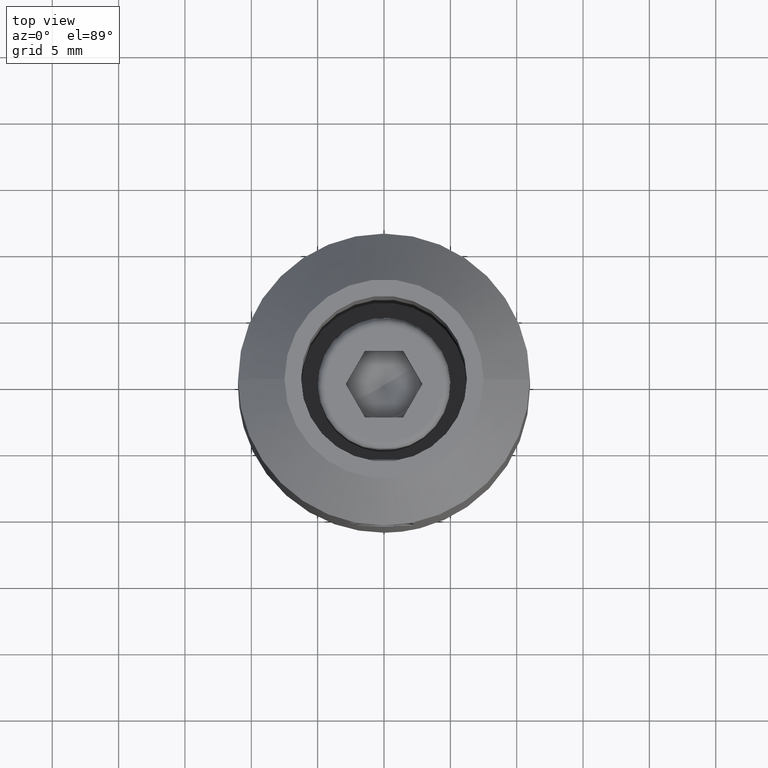
[diagram: clean part render]
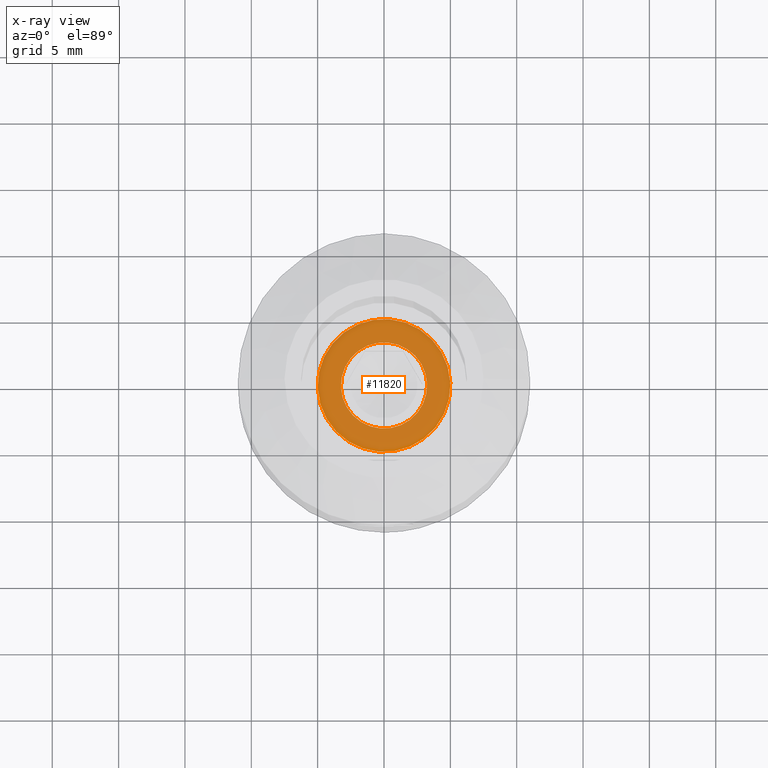
[diagram: x-ray — body ghosted, one internal face saturated and labeled with its STEP entity id]
A machine part, top view, then the same camera in x-ray: the body is ghosted and one INTERNAL B-rep face — a face not visible from any outside direction — is saturated and labeled: STEP entity #11820.
In plain terms, the highlighted planar face has unit normal (0, 0, -1).
Its self-contained STEP definition (entity closure, byte-faithful):
#46 = DIRECTION ( 'NONE',  ( -0.000000000000000000, 2.109423746787771394E-15, -1.000000000000000000 ) ) ;
#182 = CARTESIAN_POINT ( 'NONE',  ( 5.999999999999998224, 0.000000000000000000, 0.000000000000000000 ) ) ;
#391 = ORIENTED_EDGE ( 'NONE', *, *, #2069, .T. ) ;
#999 = EDGE_LOOP ( 'NONE', ( #15468, #7928 ) ) ;
#2069 = EDGE_CURVE ( 'NONE', #15033, #12551, #10510, .T. ) ;
#2611 = CARTESIAN_POINT ( 'NONE',  ( 5.999999999999998224, 1.115944213351253350E-14, -5.000000000000000000 ) ) ;
#4245 = CARTESIAN_POINT ( 'NONE',  ( 6.000000000000001776, 6.855627177060340059E-15, -3.250000000000039968 ) ) ;
#4606 = EDGE_CURVE ( 'NONE', #18662, #7237, #17192, .T. ) ;
#5310 = DIRECTION ( 'NONE',  ( 0.000000000000000000, -2.109423746787771394E-15, 1.000000000000000000 ) ) ;
#5490 = CARTESIAN_POINT ( 'NONE',  ( 5.999999999999998224, -1.054711873393898713E-14, 5.000000000000062172 ) ) ;
#5559 = AXIS2_PLACEMENT_3D ( 'NONE', #20348, #20577, #18783 ) ;
#5957 = CIRCLE ( 'NONE', #21829, 3.250000000000039968 ) ;
#7237 = VERTEX_POINT ( 'NONE', #2611 ) ;
#7928 = ORIENTED_EDGE ( 'NONE', *, *, #10188, .F. ) ;
#8174 = EDGE_CURVE ( 'NONE', #12551, #15033, #5957, .T. ) ;
#8318 = CARTESIAN_POINT ( 'NONE',  ( 6.000000000000001776, -6.457616967337446095E-15, 3.250000000000039968 ) ) ;
#8901 = CARTESIAN_POINT ( 'NONE',  ( 6.000000000000001776, 5.000000000000084377, 4.336808689942017736E-16 ) ) ;
#9710 = DIRECTION ( 'NONE',  ( -1.000000000000000000, -0.000000000000000000, -0.000000000000000000 ) ) ;
#10188 = EDGE_CURVE ( 'NONE', #7237, #18662, #14953, .T. ) ;
#10214 = DIRECTION ( 'NONE',  ( 1.000000000000000000, 0.000000000000000000, 0.000000000000000000 ) ) ;
#10510 = CIRCLE ( 'NONE', #18063, 3.250000000000039968 ) ;
#10545 = DIRECTION ( 'NONE',  ( 0.000000000000000000, 2.109423746787771000E-15, -1.000000000000000000 ) ) ;
#11820 = ADVANCED_FACE ( 'NONE', ( #17591, #15167 ), #19106, .T. ) ;
#12551 = VERTEX_POINT ( 'NONE', #4245 ) ;
#12735 = EDGE_LOOP ( 'NONE', ( #13219, #391 ) ) ;
#13154 = CARTESIAN_POINT ( 'NONE',  ( 6.000000000000001776, 0.000000000000000000, 0.000000000000000000 ) ) ;
#13219 = ORIENTED_EDGE ( 'NONE', *, *, #8174, .T. ) ;
#13723 = DIRECTION ( 'NONE',  ( -1.000000000000000000, 0.000000000000000000, 0.000000000000000000 ) ) ;
#13918 = CARTESIAN_POINT ( 'NONE',  ( 6.000000000000001776, 0.000000000000000000, 0.000000000000000000 ) ) ;
#14953 = CIRCLE ( 'NONE', #5559, 5.000000000000062172 ) ;
#15033 = VERTEX_POINT ( 'NONE', #8318 ) ;
#15167 = FACE_OUTER_BOUND ( 'NONE', #999, .T. ) ;
#15468 = ORIENTED_EDGE ( 'NONE', *, *, #4606, .F. ) ;
#16531 = AXIS2_PLACEMENT_3D ( 'NONE', #182, #13723, #5310 ) ;
#17192 = CIRCLE ( 'NONE', #16531, 5.000000000000062172 ) ;
#17591 = FACE_BOUND ( 'NONE', #12735, .T. ) ;
#18063 = AXIS2_PLACEMENT_3D ( 'NONE', #13154, #9710, #21378 ) ;
#18662 = VERTEX_POINT ( 'NONE', #5490 ) ;
#18783 = DIRECTION ( 'NONE',  ( 0.000000000000000000, -2.109423746787771394E-15, 1.000000000000000000 ) ) ;
#19106 = PLANE ( 'NONE',  #21434 ) ;
#19205 = DIRECTION ( 'NONE',  ( -1.000000000000000000, -0.000000000000000000, -0.000000000000000000 ) ) ;
#20348 = CARTESIAN_POINT ( 'NONE',  ( 5.999999999999998224, 0.000000000000000000, 0.000000000000000000 ) ) ;
#20577 = DIRECTION ( 'NONE',  ( -1.000000000000000000, 0.000000000000000000, 0.000000000000000000 ) ) ;
#21378 = DIRECTION ( 'NONE',  ( 0.000000000000000000, 2.109423746787771000E-15, -1.000000000000000000 ) ) ;
#21434 = AXIS2_PLACEMENT_3D ( 'NONE', #8901, #10214, #46 ) ;
#21829 = AXIS2_PLACEMENT_3D ( 'NONE', #13918, #19205, #10545 ) ;